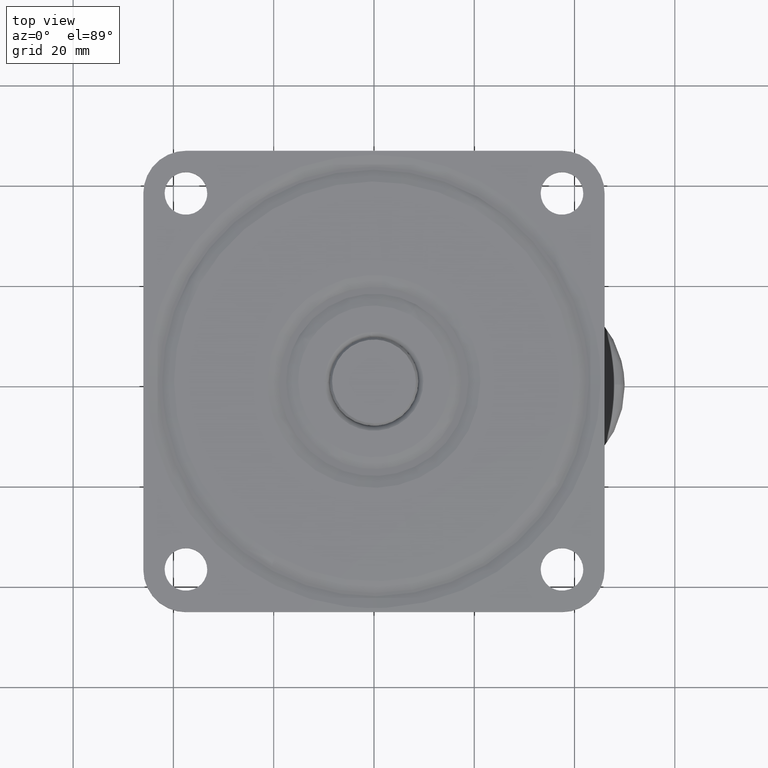
[diagram: clean part render]
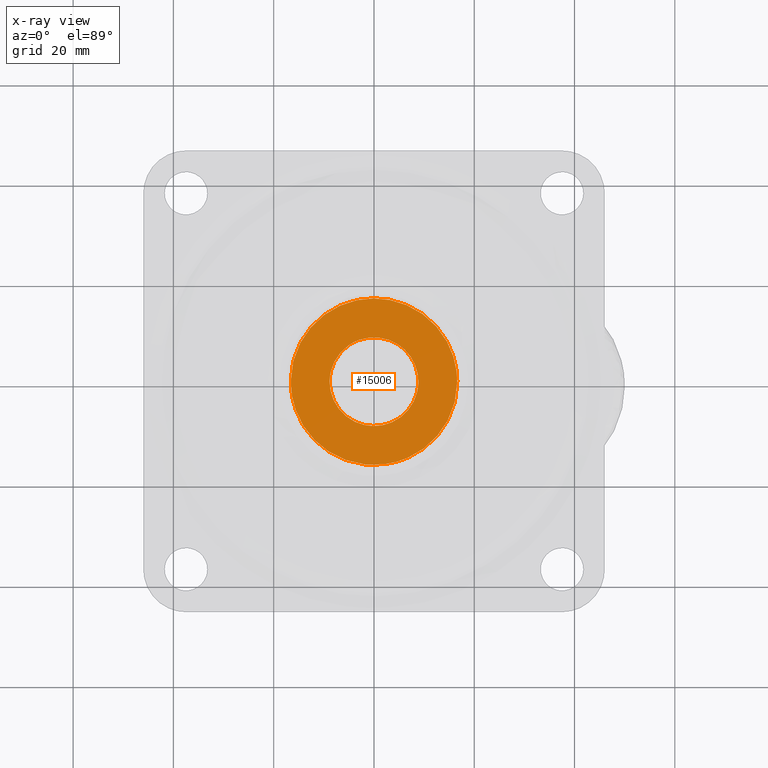
[diagram: x-ray — body ghosted, one internal face saturated and labeled with its STEP entity id]
A machine part, top view, then the same camera in x-ray: the body is ghosted and one INTERNAL B-rep face — a face not visible from any outside direction — is saturated and labeled: STEP entity #15006.
In plain terms, the highlighted face is a freeform B-spline surface patch.
Its self-contained STEP definition (entity closure, byte-faithful):
#12303=CARTESIAN_POINT('',(-5.065934579742554,7.256638811025058,-4.315556000000001));
#12304=VERTEX_POINT('',#12303);
#12305=CARTESIAN_POINT('',(-8.850000000000000,0.0,-4.315556000000000));
#12306=VERTEX_POINT('',#12305);
#12307=CARTESIAN_POINT('',(-5.065934579742554,7.256638811025057,-4.315556000000001));
#12308=CARTESIAN_POINT('',(-8.850000000000000,4.614943618022114,-4.315556000000000));
#12309=CARTESIAN_POINT('',(-8.850000000000000,0.0,-4.315556000000000));
#12317=(BOUNDED_CURVE()B_SPLINE_CURVE(2,(#12307,#12308,#12309),.UNSPECIFIED.,.F.,.U.)B_SPLINE_CURVE_WITH_KNOTS((3,3),(0.348383774439179,0.500000000000000),.UNSPECIFIED.)CURVE()GEOMETRIC_REPRESENTATION_ITEM()RATIONAL_B_SPLINE_CURVE((0.860193148301806,0.822370542684579,1.0))REPRESENTATION_ITEM(''));
#12318=EDGE_CURVE('',#12304,#12306,#12317,.T.);
#12320=CARTESIAN_POINT('',(8.850000000000000,0.0,-4.315556000000000));
#12321=VERTEX_POINT('',#12320);
#12322=CARTESIAN_POINT('',(-8.850000000000000,0.0,-4.315556000000000));
#12323=CARTESIAN_POINT('',(-8.850000000000000,-8.850000000000000,-4.315556000000000));
#12324=CARTESIAN_POINT('',(0.0,-8.850000000000000,-4.315556000000000));
#12325=CARTESIAN_POINT('',(8.850000000000000,-8.850000000000000,-4.315556000000000));
#12326=CARTESIAN_POINT('',(8.850000000000000,0.0,-4.315556000000000));
#12334=(BOUNDED_CURVE()B_SPLINE_CURVE(2,(#12322,#12323,#12324,#12325,#12326),.UNSPECIFIED.,.F.,.U.)B_SPLINE_CURVE_WITH_KNOTS((3,2,3),(0.500000000000000,0.750000000000000,1.0),.UNSPECIFIED.)CURVE()GEOMETRIC_REPRESENTATION_ITEM()RATIONAL_B_SPLINE_CURVE((1.0,0.707106781186547,1.0,0.707106781186547,1.0))REPRESENTATION_ITEM(''));
#12335=EDGE_CURVE('',#12306,#12321,#12334,.T.);
#12337=CARTESIAN_POINT('',(2.961763929095159,8.339691506775687,-4.315556000000685));
#12338=VERTEX_POINT('',#12337);
#12339=CARTESIAN_POINT('',(8.850000000000000,0.0,-4.315556000000000));
#12340=CARTESIAN_POINT('',(8.850000000000000,6.248539191780362,-4.315556000000000));
#12341=CARTESIAN_POINT('',(2.961763929095159,8.339691506775687,-4.315556000000685));
#12349=(BOUNDED_CURVE()B_SPLINE_CURVE(2,(#12339,#12340,#12341),.UNSPECIFIED.,.F.,.U.)B_SPLINE_CURVE_WITH_KNOTS((3,3),(0.0,0.193141096100624),.UNSPECIFIED.)CURVE()GEOMETRIC_REPRESENTATION_ITEM()RATIONAL_B_SPLINE_CURVE((1.0,0.773721130711720,0.897072252133425))REPRESENTATION_ITEM(''));
#12350=EDGE_CURVE('',#12321,#12338,#12349,.T.);
#12450=CARTESIAN_POINT('',(2.961763929095159,8.339691506775687,-4.315556000000685));
#12451=CARTESIAN_POINT('',(1.524844745594823,8.850000000000000,-4.315556000000000));
#12452=CARTESIAN_POINT('',(0.0,8.850000000000000,-4.315556000000000));
#12453=CARTESIAN_POINT('',(-2.783542957457243,8.850000000000000,-4.315556000000000));
#12454=CARTESIAN_POINT('',(-5.065934579742554,7.256638811025057,-4.315556000000001));
#12462=(BOUNDED_CURVE()B_SPLINE_CURVE(2,(#12450,#12451,#12452,#12453,#12454),.UNSPECIFIED.,.F.,.U.)B_SPLINE_CURVE_WITH_KNOTS((3,2,3),(0.193141096100624,0.250000000000000,0.348383774439179),.UNSPECIFIED.)CURVE()GEOMETRIC_REPRESENTATION_ITEM()RATIONAL_B_SPLINE_CURVE((0.897072252133425,0.933385650474828,1.0,0.884736238501968,0.860193148301806))REPRESENTATION_ITEM(''));
#12463=EDGE_CURVE('',#12338,#12304,#12462,.T.);
#13792=CARTESIAN_POINT('',(2.082125291514053,-16.481718796732562,-4.315555959919690));
#13793=VERTEX_POINT('',#13792);
#13794=CARTESIAN_POINT('',(-16.612714981818499,0.0,-4.315556000000000));
#13795=VERTEX_POINT('',#13794);
#13796=CARTESIAN_POINT('',(2.082125291514052,-16.481718796732565,-4.315555959919690));
#13797=CARTESIAN_POINT('',(1.045183435459339,-16.612714981818495,-4.315555999999999));
#13798=CARTESIAN_POINT('',(0.0,-16.612714981818499,-4.315556000000000));
#13799=CARTESIAN_POINT('',(-16.612714981818492,-16.612714981818492,-4.315556000000001));
#13800=CARTESIAN_POINT('',(-16.612714981818499,0.0,-4.315556000000000));
#13808=(BOUNDED_CURVE()B_SPLINE_CURVE(2,(#13796,#13797,#13798,#13799,#13800),.UNSPECIFIED.,.F.,.U.)B_SPLINE_CURVE_WITH_KNOTS((3,2,3),(0.728321256477533,0.750000000000000,1.0),.UNSPECIFIED.)CURVE()GEOMETRIC_REPRESENTATION_ITEM()RATIONAL_B_SPLINE_CURVE((0.953608357584161,0.974601772119494,1.0,0.707106781186548,1.0))REPRESENTATION_ITEM(''));
#13809=EDGE_CURVE('',#13793,#13795,#13808,.T.);
#13811=CARTESIAN_POINT('',(16.481718796731421,2.082125291497407,-4.315555959916900));
#13812=VERTEX_POINT('',#13811);
#13813=CARTESIAN_POINT('',(-16.612714981818499,0.0,-4.315556000000000));
#13814=CARTESIAN_POINT('',(-16.612714981818492,16.612714981818492,-4.315556000000001));
#13815=CARTESIAN_POINT('',(0.0,16.612714981818499,-4.315556000000000));
#13816=CARTESIAN_POINT('',(14.646078397279355,16.612714981818499,-4.315555999999999));
#13817=CARTESIAN_POINT('',(16.481718796731425,2.082125291497407,-4.315555959916900));
#13825=(BOUNDED_CURVE()B_SPLINE_CURVE(2,(#13813,#13814,#13815,#13816,#13817),.UNSPECIFIED.,.F.,.U.)B_SPLINE_CURVE_WITH_KNOTS((3,2,3),(0.0,0.250000000000000,0.478321256477865),.UNSPECIFIED.)CURVE()GEOMETRIC_REPRESENTATION_ITEM()RATIONAL_B_SPLINE_CURVE((1.0,0.707106781186548,1.0,0.732505009066665,0.953608357584804))REPRESENTATION_ITEM(''));
#13826=EDGE_CURVE('',#13795,#13812,#13825,.T.);
#13878=CARTESIAN_POINT('',(16.612714981818499,0.0,-4.315556000000000));
#13879=VERTEX_POINT('',#13878);
#13880=CARTESIAN_POINT('',(16.612714981818499,0.0,-4.315556000000000));
#13881=CARTESIAN_POINT('',(16.612714981818499,-14.646078397250244,-4.315556000000000));
#13882=CARTESIAN_POINT('',(2.082125291514053,-16.481718796732558,-4.315555959919690));
#13890=(BOUNDED_CURVE()B_SPLINE_CURVE(2,(#13880,#13881,#13882),.UNSPECIFIED.,.F.,.U.)B_SPLINE_CURVE_WITH_KNOTS((3,3),(0.500000000000000,0.728321256477533),.UNSPECIFIED.)CURVE()GEOMETRIC_REPRESENTATION_ITEM()RATIONAL_B_SPLINE_CURVE((1.0,0.732505009067054,0.953608357584160))REPRESENTATION_ITEM(''));
#13891=EDGE_CURVE('',#13879,#13793,#13890,.T.);
#13897=CARTESIAN_POINT('',(16.481718796731425,2.082125291497407,-4.315555959916900));
#13898=CARTESIAN_POINT('',(16.612714981818499,1.045183435442904,-4.315556000000000));
#13899=CARTESIAN_POINT('',(16.612714981818499,0.0,-4.315556000000000));
#13907=(BOUNDED_CURVE()B_SPLINE_CURVE(2,(#13897,#13898,#13899),.UNSPECIFIED.,.F.,.U.)B_SPLINE_CURVE_WITH_KNOTS((3,3),(0.478321256477865,0.500000000000000),.UNSPECIFIED.)CURVE()GEOMETRIC_REPRESENTATION_ITEM()RATIONAL_B_SPLINE_CURVE((0.953608357584804,0.974601772119883,1.0))REPRESENTATION_ITEM(''));
#13908=EDGE_CURVE('',#13812,#13879,#13907,.T.);
#14989=CARTESIAN_POINT('',(-18.272325144104840,-18.270359471333741,-4.315556000000000));
#14990=CARTESIAN_POINT('',(18.272326035280312,-18.270359471333741,-4.315556000000000));
#14991=CARTESIAN_POINT('',(-18.272325144104840,18.259866174429440,-4.315556000000000));
#14992=CARTESIAN_POINT('',(18.272326035280312,18.259866174429440,-4.315556000000000));
#14993=B_SPLINE_SURFACE_WITH_KNOTS('',1,1,((#14989,#14991),(#14990,#14992)),.UNSPECIFIED.,.F.,.F.,.U.,(2,2),(2,2),(0.0,36.544651179385149),(0.0,36.530225645763181),.UNSPECIFIED.);
#14994=ORIENTED_EDGE('',*,*,#13891,.F.);
#14995=ORIENTED_EDGE('',*,*,#13908,.F.);
#14996=ORIENTED_EDGE('',*,*,#13826,.F.);
#14997=ORIENTED_EDGE('',*,*,#13809,.F.);
#14998=EDGE_LOOP('',(#14994,#14995,#14996,#14997));
#14999=FACE_OUTER_BOUND('',#14998,.T.);
#15000=ORIENTED_EDGE('',*,*,#12335,.F.);
#15001=ORIENTED_EDGE('',*,*,#12318,.F.);
#15002=ORIENTED_EDGE('',*,*,#12463,.F.);
#15003=ORIENTED_EDGE('',*,*,#12350,.F.);
#15004=EDGE_LOOP('',(#15000,#15001,#15002,#15003));
#15005=FACE_BOUND('',#15004,.T.);
#15006=ADVANCED_FACE('',(#14999,#15005),#14993,.T.);